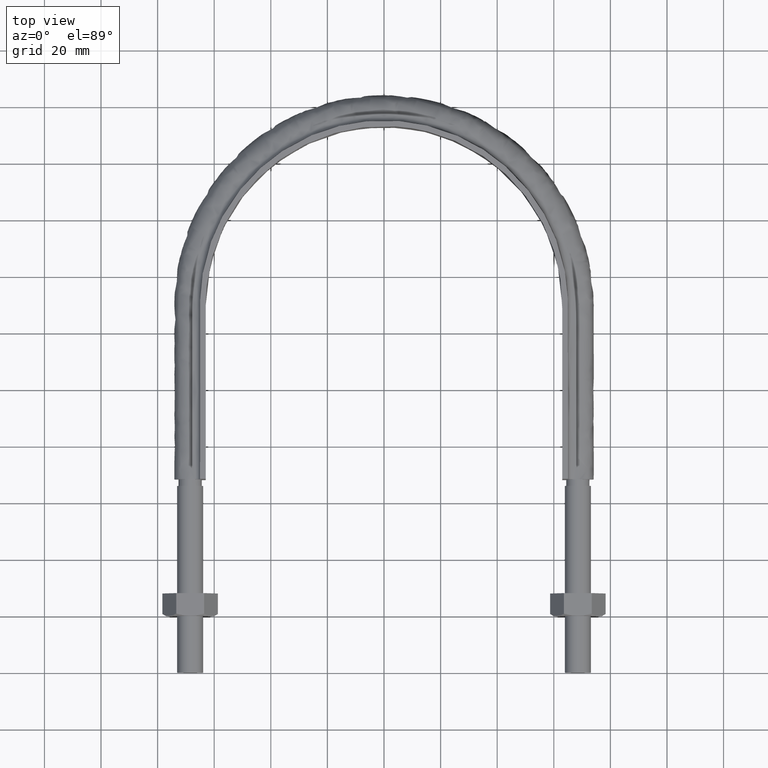
[diagram: clean part render]
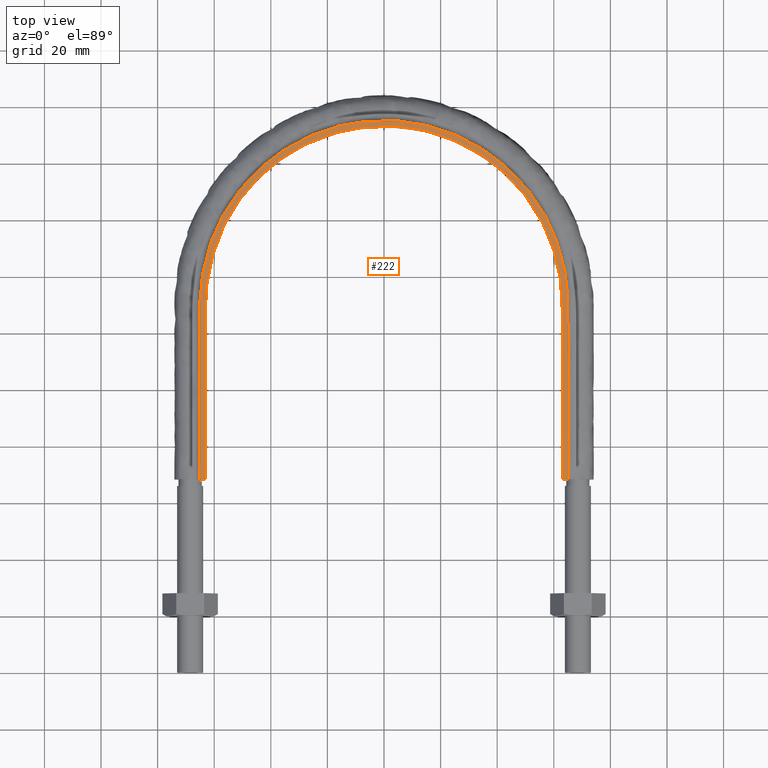
[diagram: same view with one face highlighted and labeled with its STEP entity id]
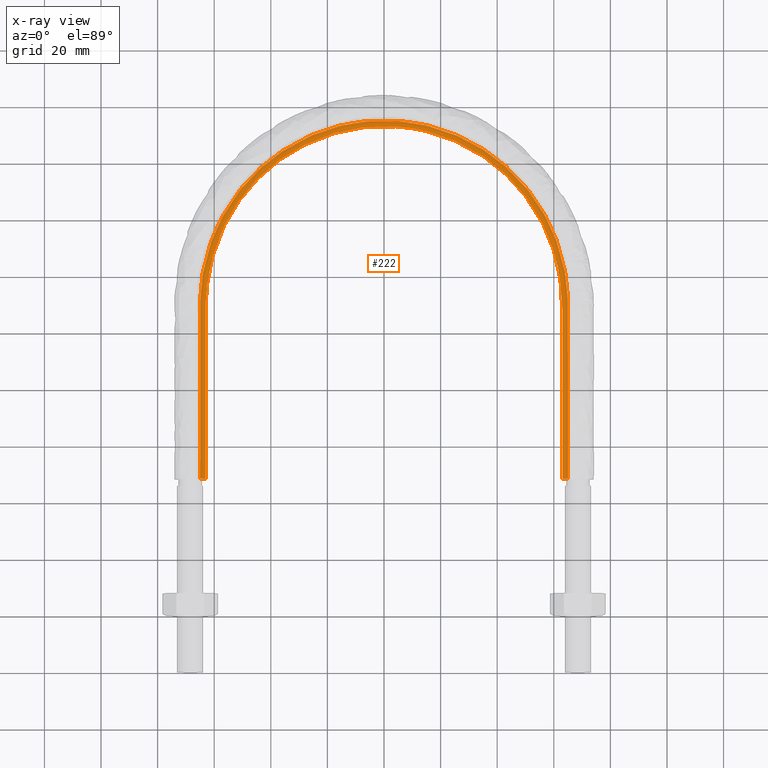
[diagram: x-ray of the same camera — body ghosted, the highlighted face saturated]
A machine part, top view. The second image highlights one B-rep face of the part: STEP entity #222.
The next image is the same camera in x-ray: the body ghosted, the highlighted face saturated — about 0% of this face is hidden behind the body in this view.
In plain terms, the highlighted planar face has unit normal (0, 0, 1).
Its self-contained STEP definition (entity closure, byte-faithful):
#222 = ADVANCED_FACE( '', ( #301 ), #302, .T. );
#301 = FACE_OUTER_BOUND( '', #469, .T. );
#302 = PLANE( '', #470 );
#469 = EDGE_LOOP( '', ( #1319, #1320, #1321, #1322 ) );
#470 = AXIS2_PLACEMENT_3D( '', #1323, #1324, #1325 );
#1319 = ORIENTED_EDGE( '', *, *, #1818, .T. );
#1320 = ORIENTED_EDGE( '', *, *, #1826, .F. );
#1321 = ORIENTED_EDGE( '', *, *, #1821, .T. );
#1322 = ORIENTED_EDGE( '', *, *, #1827, .F. );
#1323 = CARTESIAN_POINT( '', ( 80.0000000000000, 228.300000000000, 12.5000000000000 ) );
#1324 = DIRECTION( '', ( 0.000000000000000, 0.000000000000000, 1.00000000000000 ) );
#1325 = DIRECTION( '', ( 1.22460635382238E-016, 1.00000000000000, 0.000000000000000 ) );
#1818 = EDGE_CURVE( '', #1970, #1967, #1971, .T. );
#1821 = EDGE_CURVE( '', #1975, #1976, #1977, .T. );
#1826 = EDGE_CURVE( '', #1975, #1967, #1984, .T. );
#1827 = EDGE_CURVE( '', #1970, #1976, #1985, .T. );
#1967 = VERTEX_POINT( '', #2213 );
#1970 = VERTEX_POINT( '', #2217 );
#1971 = LINE( '', #2218, #2219 );
#1975 = VERTEX_POINT( '', #2254 );
#1976 = VERTEX_POINT( '', #2255 );
#1977 = LINE( '', #2256, #2257 );
#1984 = B_SPLINE_CURVE_WITH_KNOTS( '', 3, ( #2311, #2312, #2313, #2314, #2315, #2316, #2317, #2318, #2319, #2320, #2321, #2322, #2323, #2324, #2325, #2326, #2327, #2328, #2329, #2330, #2331, #2332, #2333, #2334, #2335, #2336, #2337, #2338, #2339, #2340, #2341, #2342, #2343, #2344, #2345, #2346, #2347, #2348, #2349, #2350, #2351, #2352, #2353, #2354, #2355, #2356, #2357, #2358, #2359, #2360, #2361, #2362, #2363, #2364, #2365, #2366, #2367, #2368, #2369, #2370, #2371, #2372, #2373, #2374, #2375, #2376, #2377, #2378, #2379, #2380, #2381, #2382, #2383, #2384, #2385, #2386, #2387, #2388, #2389, #2390, #2391, #2392, #2393, #2394, #2395, #2396, #2397, #2398 ), .UNSPECIFIED., .F., .F., ( 4, 1, 2, 2, 2, 2, 2, 2, 2, 2, 2, 2, 2, 2, 2, 2, 2, 2, 2, 2, 2, 2, 2, 2, 2, 2, 2, 2, 2, 2, 2, 2, 2, 2, 2, 2, 2, 2, 2, 2, 2, 2, 2, 1, 4 ), ( 4.16333634234434E-017, 0.0403585199906452, 0.0605377799859678, 0.0630601874853831, 0.0655825949847984, 0.0706274099836291, 0.0807170399812904, 0.0857618549801211, 0.0882842624795364, 0.0908066699789518, 0.100896299976613, 0.105941114975444, 0.108463522474859, 0.110985929974274, 0.121075559971936, 0.126120374970766, 0.128642782470181, 0.131165189969597, 0.141254819967258, 0.146299634966089, 0.148822042465504, 0.151344449964919, 0.161434079962580, 0.171523709960241, 0.174046117459657, 0.176568524959072, 0.181613339957903, 0.191702969955564, 0.194225377454979, 0.196747784954394, 0.201792599953225, 0.211882229950886, 0.214404637450301, 0.216927044949716, 0.221971859948547, 0.232061489946208, 0.234583897445623, 0.237106304945038, 0.242151119943868, 0.252240749941529, 0.257285564940359, 0.259807972439774, 0.262330379939190, 0.282509639934511, 0.322868159925153 ), .UNSPECIFIED. );
#1985 = B_SPLINE_CURVE_WITH_KNOTS( '', 3, ( #2399, #2400, #2401, #2402, #2403, #2404, #2405, #2406, #2407, #2408, #2409, #2410, #2411, #2412, #2413, #2414 ), .UNSPECIFIED., .F., .F., ( 4, 3, 1, 1, 1, 1, 1, 1, 3, 4 ), ( 0.0592987804878048, 1.00000000000000, 2.00000000000000, 3.00000000000000, 4.00000000000000, 5.00000000000000, 6.00000000000000, 7.00000000000000, 8.00000000000000, 8.94070121951219 ), .UNSPECIFIED. );
#2213 = CARTESIAN_POINT( '', ( -63.0000000000000, 68.3000000000000, 12.5000000000000 ) );
#2217 = CARTESIAN_POINT( '', ( -65.0000000000000, 68.3000000000000, 12.5000000000000 ) );
#2218 = CARTESIAN_POINT( '', ( -80.0000000000000, 68.3000000000001, 12.5000000000000 ) );
#2219 = VECTOR( '', #2872, 1000.00000000000 );
#2254 = CARTESIAN_POINT( '', ( 63.0000000000001, 68.3000000000000, 12.5000000000000 ) );
#2255 = CARTESIAN_POINT( '', ( 65.0000000000001, 68.3000000000001, 12.5000000000000 ) );
#2256 = CARTESIAN_POINT( '', ( -80.0000000000000, 68.3000000000001, 12.5000000000000 ) );
#2257 = VECTOR( '', #2874, 1000.00000000000 );
#2311 = CARTESIAN_POINT( '', ( 63.0000000000001, 68.3000000000000, 12.5000000000000 ) );
#2312 = CARTESIAN_POINT( '', ( 63.0000000000001, 81.7528561301916, 12.5000000000000 ) );
#2313 = CARTESIAN_POINT( '', ( 63.0000000000001, 101.932140325479, 12.5000000000000 ) );
#2314 = CARTESIAN_POINT( '', ( 63.0000000000001, 122.111424520766, 12.5000000000000 ) );
#2315 = CARTESIAN_POINT( '', ( 63.0000000000001, 129.678656093999, 12.5000000000000 ) );
#2316 = CARTESIAN_POINT( '', ( 63.0036029891680, 130.519465182119, 12.5000000000000 ) );
#2317 = CARTESIAN_POINT( '', ( 62.9669155844543, 132.201015380271, 12.5000000000000 ) );
#2318 = CARTESIAN_POINT( '', ( 62.9314314675281, 133.042572820258, 12.5000000000000 ) );
#2319 = CARTESIAN_POINT( '', ( 62.7742647165870, 135.561712269893, 12.5000000000000 ) );
#2320 = CARTESIAN_POINT( '', ( 62.6026302739461, 137.225838154575, 12.5000000000000 ) );
#2321 = CARTESIAN_POINT( '', ( 61.8953252355575, 142.174183870876, 12.5000000000000 ) );
#2322 = CARTESIAN_POINT( '', ( 61.1688557666381, 145.414738580781, 12.5000000000000 ) );
#2323 = CARTESIAN_POINT( '', ( 59.6981646336119, 150.188380190173, 12.5000000000000 ) );
#2324 = CARTESIAN_POINT( '', ( 59.1440337672953, 151.764970165355, 12.5000000000000 ) );
#2325 = CARTESIAN_POINT( '', ( 58.2133099602673, 154.107077840930, 12.5000000000000 ) );
#2326 = CARTESIAN_POINT( '', ( 57.8862226550761, 154.884260710037, 12.5000000000000 ) );
#2327 = CARTESIAN_POINT( '', ( 57.2044746038232, 156.416807183752, 12.5000000000000 ) );
#2328 = CARTESIAN_POINT( '', ( 56.8491236402779, 157.173949808864, 12.5000000000000 ) );
#2329 = CARTESIAN_POINT( '', ( 55.0006153350253, 160.914407975142, 12.5000000000000 ) );
#2330 = CARTESIAN_POINT( '', ( 53.2945694846637, 163.763454630954, 12.5000000000000 ) );
#2331 = CARTESIAN_POINT( '', ( 50.4058851931547, 167.829135949361, 12.5000000000000 ) );
#2332 = CARTESIAN_POINT( '', ( 49.3877096347452, 169.149497431627, 12.5000000000000 ) );
#2333 = CARTESIAN_POINT( '', ( 47.7757792797261, 171.076640126207, 12.5000000000000 ) );
#2334 = CARTESIAN_POINT( '', ( 47.2235115971916, 171.711010351235, 12.5000000000000 ) );
#2335 = CARTESIAN_POINT( '', ( 46.0938430282918, 172.957490539723, 12.5000000000000 ) );
#2336 = CARTESIAN_POINT( '', ( 45.5184649226947, 173.567446349944, 12.5000000000000 ) );
#2337 = CARTESIAN_POINT( '', ( 42.5895836160396, 176.551721608749, 12.5000000000000 ) );
#2338 = CARTESIAN_POINT( '', ( 40.0808901752949, 178.730515052780, 12.5000000000000 ) );
#2339 = CARTESIAN_POINT( '', ( 36.0701769262575, 181.686658988246, 12.5000000000000 ) );
#2340 = CARTESIAN_POINT( '', ( 34.6921332752078, 182.620208495386, 12.5000000000000 ) );
#2341 = CARTESIAN_POINT( '', ( 32.5629908908397, 183.942321331327, 12.5000000000000 ) );
#2342 = CARTESIAN_POINT( '', ( 31.8429147391925, 184.369970374909, 12.5000000000000 ) );
#2343 = CARTESIAN_POINT( '', ( 30.3817781284526, 185.198830086816, 12.5000000000000 ) );
#2344 = CARTESIAN_POINT( '', ( 29.6404939153229, 185.600049887960, 12.5000000000000 ) );
#2345 = CARTESIAN_POINT( '', ( 25.9147314496090, 187.522247019428, 12.5000000000000 ) );
#2346 = CARTESIAN_POINT( '', ( 22.8468170495402, 188.808839464741, 12.5000000000000 ) );
#2347 = CARTESIAN_POINT( '', ( 18.1166878313116, 190.369745036333, 12.5000000000000 ) );
#2348 = CARTESIAN_POINT( '', ( 16.5184663190759, 190.828159883137, 12.5000000000000 ) );
#2349 = CARTESIAN_POINT( '', ( 14.0879720623324, 191.420378750901, 12.5000000000000 ) );
#2350 = CARTESIAN_POINT( '', ( 13.2722569227007, 191.601817184578, 12.5000000000000 ) );
#2351 = CARTESIAN_POINT( '', ( 11.6296062344383, 191.932414166218, 12.5000000000000 ) );
#2352 = CARTESIAN_POINT( '', ( 10.8011892588898, 192.081826847964, 12.5000000000000 ) );
#2353 = CARTESIAN_POINT( '', ( 6.64837338529782, 192.744621052144, 12.5000000000000 ) );
#2354 = CARTESIAN_POINT( '', ( 3.32680303459539, 193.002956882961, 12.5000000000000 ) );
#2355 = CARTESIAN_POINT( '', ( -3.31504259065476, 193.003571470062, 12.5000000000000 ) );
#2356 = CARTESIAN_POINT( '', ( -6.63531783672263, 192.745838877775, 12.5000000000000 ) );
#2357 = CARTESIAN_POINT( '', ( -10.7848111072922, 192.084654727947, 12.5000000000000 ) );
#2358 = CARTESIAN_POINT( '', ( -11.6143828511466, 191.935271661077, 12.5000000000000 ) );
#2359 = CARTESIAN_POINT( '', ( -13.2582911311271, 191.604830620017, 12.5000000000000 ) );
#2360 = CARTESIAN_POINT( '', ( -14.0745225471330, 191.423468831004, 12.5000000000000 ) );
#2361 = CARTESIAN_POINT( '', ( -16.5062429875162, 190.831507874132, 12.5000000000000 ) );
#2362 = CARTESIAN_POINT( '', ( -18.1048539377693, 190.373303138248, 12.5000000000000 ) );
#2363 = CARTESIAN_POINT( '', ( -22.8350042791568, 188.813427677162, 12.5000000000000 ) );
#2364 = CARTESIAN_POINT( '', ( -25.9014093667636, 187.528041944287, 12.5000000000000 ) );
#2365 = CARTESIAN_POINT( '', ( -29.6236851201293, 185.608987805660, 12.5000000000000 ) );
#2366 = CARTESIAN_POINT( '', ( -30.3637687063948, 185.208745066268, 12.5000000000000 ) );
#2367 = CARTESIAN_POINT( '', ( -31.8269381963086, 184.379327713897, 12.5000000000000 ) );
#2368 = CARTESIAN_POINT( '', ( -32.5478930458141, 183.951430862916, 12.5000000000000 ) );
#2369 = CARTESIAN_POINT( '', ( -34.6792940248365, 182.628704455284, 12.5000000000000 ) );
#2370 = CARTESIAN_POINT( '', ( -36.0583409066396, 181.694918845943, 12.5000000000000 ) );
#2371 = CARTESIAN_POINT( '', ( -40.0708003962987, 178.738874054776, 12.5000000000000 ) );
#2372 = CARTESIAN_POINT( '', ( -42.5789623277134, 176.561220323517, 12.5000000000000 ) );
#2373 = CARTESIAN_POINT( '', ( -45.5058158142334, 173.580661240098, 12.5000000000000 ) );
#2374 = CARTESIAN_POINT( '', ( -46.0807202027165, 172.971564205372, 12.5000000000000 ) );
#2375 = CARTESIAN_POINT( '', ( -47.2093238293025, 171.727061577096, 12.5000000000000 ) );
#2376 = CARTESIAN_POINT( '', ( -47.7629465235345, 171.091591272907, 12.5000000000000 ) );
#2377 = CARTESIAN_POINT( '', ( -49.3772034451763, 169.162827201710, 12.5000000000000 ) );
#2378 = CARTESIAN_POINT( '', ( -50.3964994659766, 167.841671342456, 12.5000000000000 ) );
#2379 = CARTESIAN_POINT( '', ( -53.2875785646770, 163.774634143876, 12.5000000000000 ) );
#2380 = CARTESIAN_POINT( '', ( -54.9939299231489, 160.926038297650, 12.5000000000000 ) );
#2381 = CARTESIAN_POINT( '', ( -56.8421556479949, 157.188518418479, 12.5000000000000 ) );
#2382 = CARTESIAN_POINT( '', ( -57.1974166883330, 156.432083530124, 12.5000000000000 ) );
#2383 = CARTESIAN_POINT( '', ( -57.8789401470320, 154.901208867970, 12.5000000000000 ) );
#2384 = CARTESIAN_POINT( '', ( -58.2057970540347, 154.125293405857, 12.5000000000000 ) );
#2385 = CARTESIAN_POINT( '', ( -59.1381982440397, 151.781012353943, 12.5000000000000 ) );
#2386 = CARTESIAN_POINT( '', ( -59.6931478828082, 150.203330651056, 12.5000000000000 ) );
#2387 = CARTESIAN_POINT( '', ( -61.1657358543388, 145.427513867541, 12.5000000000000 ) );
#2388 = CARTESIAN_POINT( '', ( -61.8927230283381, 142.186965235983, 12.5000000000000 ) );
#2389 = CARTESIAN_POINT( '', ( -62.6008369697937, 137.241078370440, 12.5000000000000 ) );
#2390 = CARTESIAN_POINT( '', ( -62.7727451798713, 135.578182671217, 12.5000000000000 ) );
#2391 = CARTESIAN_POINT( '', ( -62.9304885137461, 133.061565974202, 12.5000000000000 ) );
#2392 = CARTESIAN_POINT( '', ( -62.9662674057679, 132.219356753179, 12.5000000000000 ) );
#2393 = CARTESIAN_POINT( '', ( -63.0034563058177, 130.537313962985, 12.5000000000000 ) );
#2394 = CARTESIAN_POINT( '', ( -63.0000000000000, 129.696264901837, 12.5000000000000 ) );
#2395 = CARTESIAN_POINT( '', ( -63.0000000000000, 122.126862379693, 12.5000000000000 ) );
#2396 = CARTESIAN_POINT( '', ( -63.0000000000000, 101.941788987308, 12.5000000000000 ) );
#2397 = CARTESIAN_POINT( '', ( -63.0000000000000, 81.7567155949233, 12.5000000000000 ) );
#2398 = CARTESIAN_POINT( '', ( -63.0000000000000, 68.3000000000000, 12.5000000000000 ) );
#2399 = CARTESIAN_POINT( '', ( -65.0000000000000, 68.3000000000000, 12.5000000000000 ) );
#2400 = CARTESIAN_POINT( '', ( -65.0000000000000, 88.8700000000000, 12.5000000000000 ) );
#2401 = CARTESIAN_POINT( '', ( -65.0000000000000, 109.440000000000, 12.5000000000000 ) );
#2402 = CARTESIAN_POINT( '', ( -65.0000000000000, 130.010000000000, 12.5000000000000 ) );
#2403 = CARTESIAN_POINT( '', ( -65.0000000000000, 139.722642194517, 12.5000000000000 ) );
#2404 = CARTESIAN_POINT( '', ( -60.5621560385809, 159.179409743994, 12.5000000000000 ) );
#2405 = CARTESIAN_POINT( '', ( -41.9103123469103, 182.562760860094, 12.5000000000000 ) );
#2406 = CARTESIAN_POINT( '', ( -14.9576172986841, 195.543824978164, 12.5000000000000 ) );
#2407 = CARTESIAN_POINT( '', ( 14.9576172986842, 195.543824978164, 12.5000000000000 ) );
#2408 = CARTESIAN_POINT( '', ( 41.9103123469103, 182.562760860094, 12.5000000000000 ) );
#2409 = CARTESIAN_POINT( '', ( 60.5621560385810, 159.179409743994, 12.5000000000000 ) );
#2410 = CARTESIAN_POINT( '', ( 65.0000000000000, 139.722642194517, 12.5000000000000 ) );
#2411 = CARTESIAN_POINT( '', ( 65.0000000000001, 130.010000000000, 12.5000000000000 ) );
#2412 = CARTESIAN_POINT( '', ( 65.0000000000000, 109.440000000000, 12.5000000000000 ) );
#2413 = CARTESIAN_POINT( '', ( 65.0000000000000, 88.8700000000000, 12.5000000000000 ) );
#2414 = CARTESIAN_POINT( '', ( 65.0000000000000, 68.3000000000001, 12.5000000000000 ) );
#2872 = DIRECTION( '', ( 1.00000000000000, -1.22460635382238E-016, 0.000000000000000 ) );
#2874 = DIRECTION( '', ( 1.00000000000000, -1.22460635382238E-016, 0.000000000000000 ) );